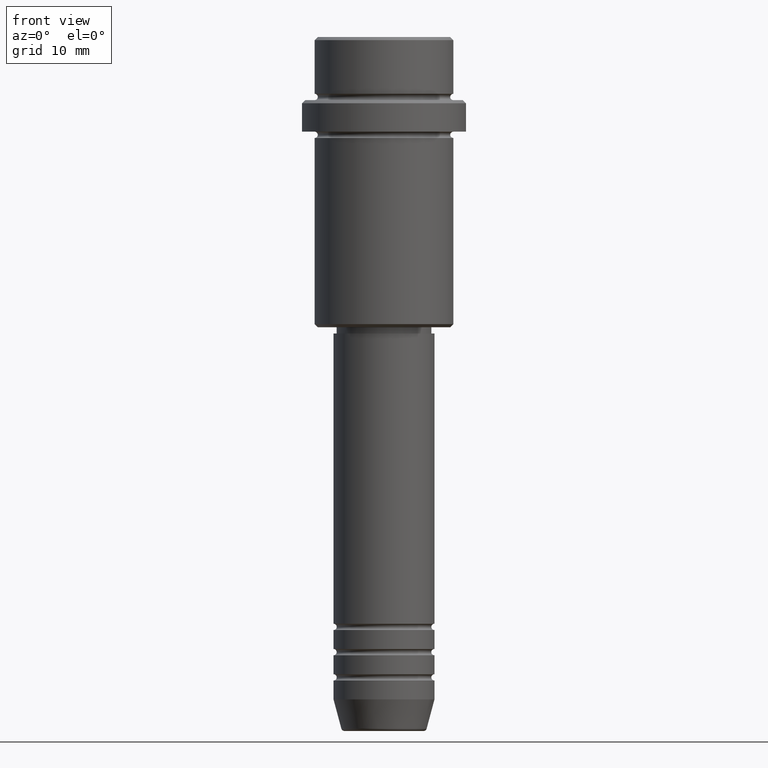
[diagram: clean part render]
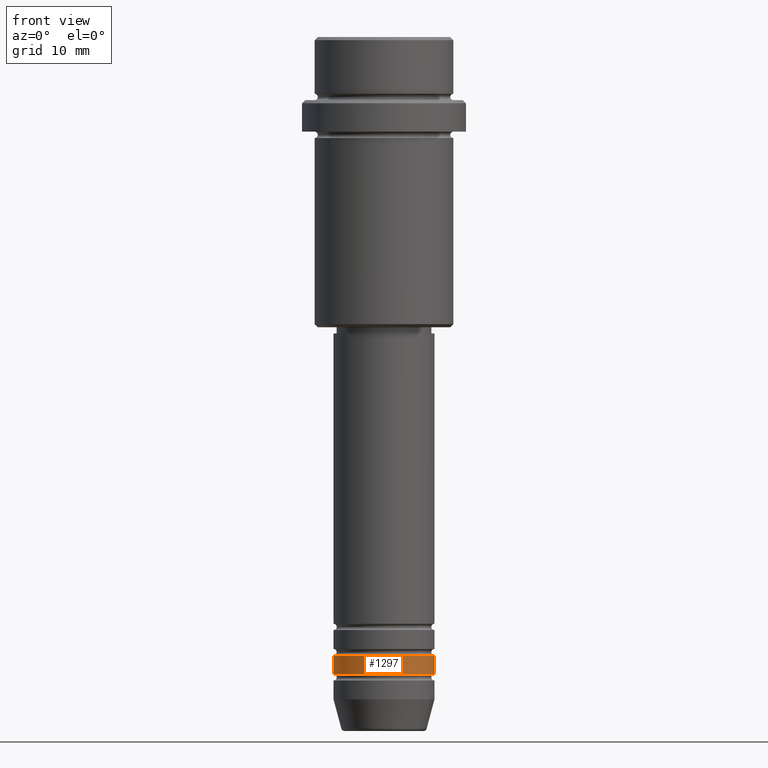
[diagram: same view with one face highlighted and labeled with its STEP entity id]
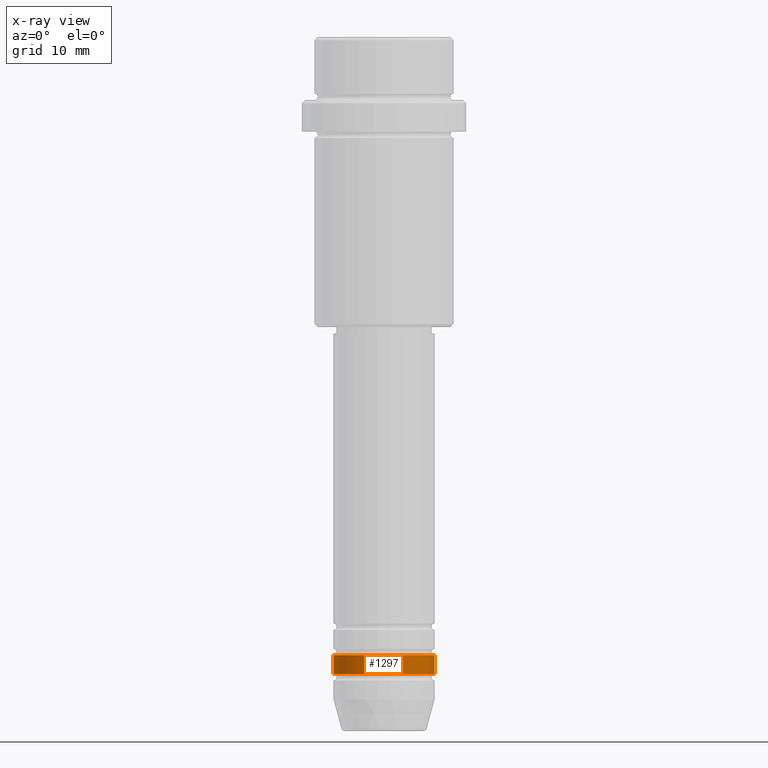
[diagram: x-ray of the same camera — body ghosted, the highlighted face saturated]
A machine part, front view. The second image highlights one B-rep face of the part: STEP entity #1297.
The next image is the same camera in x-ray: the body ghosted, the highlighted face saturated — about 0% of this face is hidden behind the body in this view.
In plain terms, the highlighted cylindrical surface (partial cylindrical patch) has radius 8 mm, axis along (-0, -0, 1).
Its self-contained STEP definition (entity closure, byte-faithful):
#72 = EDGE_CURVE ( 'NONE', #397, #945, #248, .T. ) ;
#74 = CARTESIAN_POINT ( 'NONE',  ( -8.000000000000000000, 9.797174393178825657E-16, -100.9999999999999005 ) ) ;
#101 = LINE ( 'NONE', #1196, #910 ) ;
#155 = AXIS2_PLACEMENT_3D ( 'NONE', #1130, #787, #157 ) ;
#157 = DIRECTION ( 'NONE',  ( 1.000000000000000000, 0.000000000000000000, 0.000000000000000000 ) ) ;
#193 = VERTEX_POINT ( 'NONE', #74 ) ;
#207 = ORIENTED_EDGE ( 'NONE', *, *, #1049, .T. ) ;
#231 = CARTESIAN_POINT ( 'NONE',  ( -8.000000000000000000, 9.797174393178825657E-16, -97.99999999999988631 ) ) ;
#248 = CIRCLE ( 'NONE', #1257, 8.000000000000000000 ) ;
#253 = EDGE_CURVE ( 'NONE', #193, #397, #101, .T. ) ;
#260 = CARTESIAN_POINT ( 'NONE',  ( 8.000000000000000000, 0.000000000000000000, 0.000000000000000000 ) ) ;
#267 = ORIENTED_EDGE ( 'NONE', *, *, #72, .F. ) ;
#287 = CARTESIAN_POINT ( 'NONE',  ( 8.000000000000000000, 0.000000000000000000, -100.9999999999999005 ) ) ;
#364 = AXIS2_PLACEMENT_3D ( 'NONE', #1022, #1244, #1227 ) ;
#380 = CARTESIAN_POINT ( 'NONE',  ( 0.000000000000000000, 0.000000000000000000, -97.99999999999988631 ) ) ;
#397 = VERTEX_POINT ( 'NONE', #231 ) ;
#471 = ORIENTED_EDGE ( 'NONE', *, *, #253, .F. ) ;
#473 = CIRCLE ( 'NONE', #155, 8.000000000000000000 ) ;
#507 = DIRECTION ( 'NONE',  ( 1.000000000000000000, 0.000000000000000000, 0.000000000000000000 ) ) ;
#526 = EDGE_LOOP ( 'NONE', ( #471, #207, #972, #267 ) ) ;
#534 = CARTESIAN_POINT ( 'NONE',  ( 8.000000000000000000, 0.000000000000000000, -97.99999999999988631 ) ) ;
#539 = VERTEX_POINT ( 'NONE', #287 ) ;
#582 = VECTOR ( 'NONE', #589, 1000.000000000000000 ) ;
#589 = DIRECTION ( 'NONE',  ( -0.000000000000000000, -0.000000000000000000, 1.000000000000000000 ) ) ;
#722 = DIRECTION ( 'NONE',  ( -0.000000000000000000, -0.000000000000000000, 1.000000000000000000 ) ) ;
#787 = DIRECTION ( 'NONE',  ( -0.000000000000000000, -0.000000000000000000, 1.000000000000000000 ) ) ;
#910 = VECTOR ( 'NONE', #1299, 1000.000000000000000 ) ;
#945 = VERTEX_POINT ( 'NONE', #534 ) ;
#972 = ORIENTED_EDGE ( 'NONE', *, *, #1061, .T. ) ;
#1022 = CARTESIAN_POINT ( 'NONE',  ( 0.000000000000000000, 0.000000000000000000, 0.000000000000000000 ) ) ;
#1049 = EDGE_CURVE ( 'NONE', #193, #539, #473, .T. ) ;
#1061 = EDGE_CURVE ( 'NONE', #539, #945, #1233, .T. ) ;
#1122 = FACE_OUTER_BOUND ( 'NONE', #526, .T. ) ;
#1130 = CARTESIAN_POINT ( 'NONE',  ( 0.000000000000000000, 0.000000000000000000, -100.9999999999999005 ) ) ;
#1196 = CARTESIAN_POINT ( 'NONE',  ( -8.000000000000000000, 9.797174393178825657E-16, 0.000000000000000000 ) ) ;
#1227 = DIRECTION ( 'NONE',  ( 1.000000000000000000, 0.000000000000000000, 0.000000000000000000 ) ) ;
#1233 = LINE ( 'NONE', #260, #582 ) ;
#1244 = DIRECTION ( 'NONE',  ( -0.000000000000000000, -0.000000000000000000, 1.000000000000000000 ) ) ;
#1257 = AXIS2_PLACEMENT_3D ( 'NONE', #380, #722, #507 ) ;
#1297 = ADVANCED_FACE ( 'NONE', ( #1122 ), #1329, .T. ) ;
#1299 = DIRECTION ( 'NONE',  ( -0.000000000000000000, -0.000000000000000000, 1.000000000000000000 ) ) ;
#1329 = CYLINDRICAL_SURFACE ( 'NONE', #364, 8.000000000000000000 ) ;